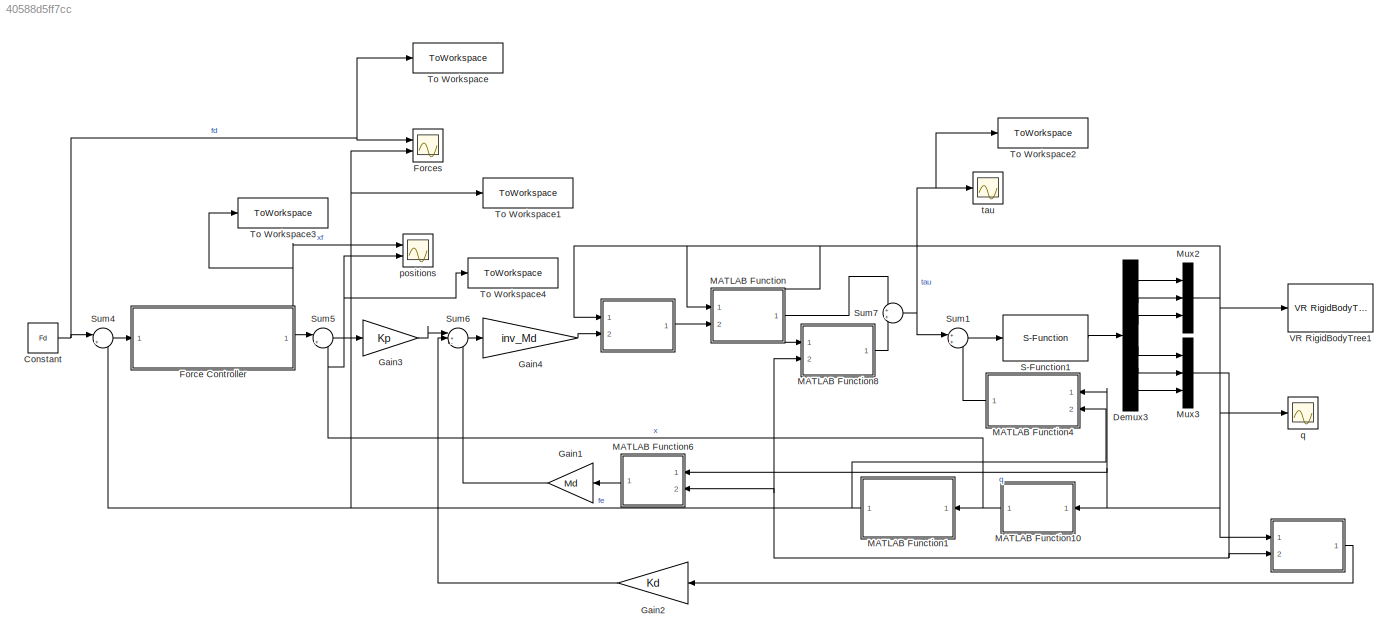
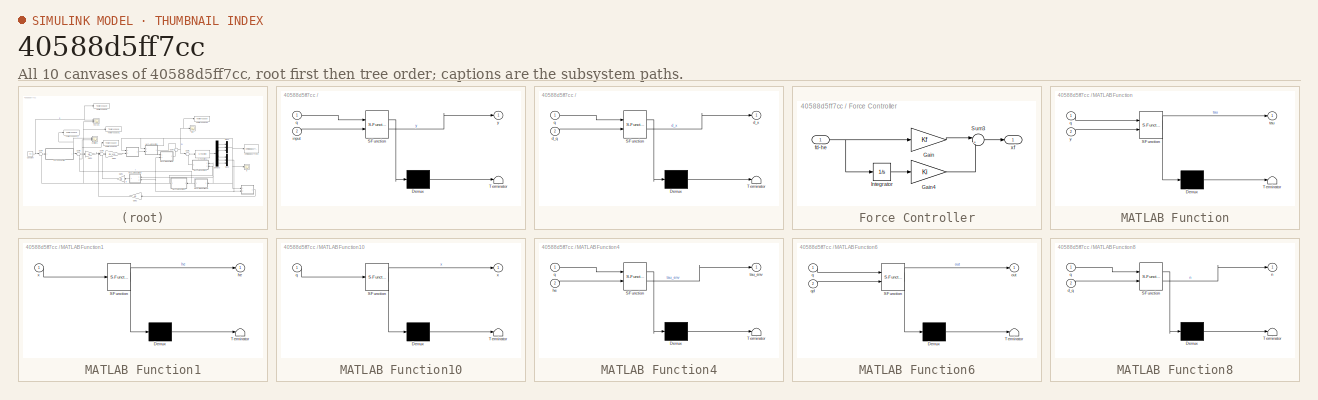
[diagram: thumbnail index - all 10 canvases of the model, root first then tree order]
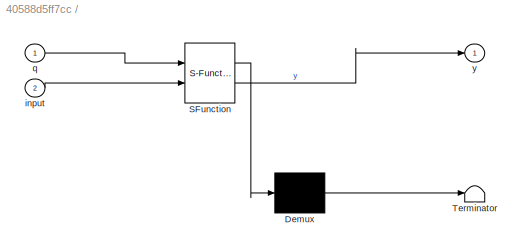
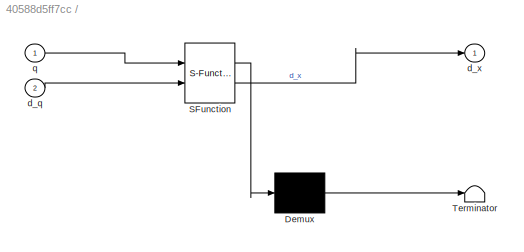
MODEL slx_40588d5ff7cc
KIND model
CONFIG AbsTol = auto
CONFIG EnableMultiTasking = off
CONFIG FixedStep = auto
CONFIG MaxStep = auto
CONFIG MinStep = auto
CONFIG RelTol = 1e-3
CONFIG SampleTimeConstraint = Unconstrained
CONFIG SolverName = VariableStepAuto
CONFIG StartTime = 0.0
CONFIG StopTime = 15
BLOCK [SubSystem]  
  ErrorFcn = Stateflow.Translate.translate
  PermitHierarchicalResolution = ExplicitOnly
  Ports = [2, 1]
  RequestExecContextInheritance = off
  SFBlockType = MATLAB Function
  TreatAsAtomicUnit = on
BLOCK [SubSystem]   
  ErrorFcn = Stateflow.Translate.translate
  NameLocation = top
  PermitHierarchicalResolution = ExplicitOnly
  Ports = [2, 1]
  RequestExecContextInheritance = off
  SFBlockType = MATLAB Function
  TreatAsAtomicUnit = on
BLOCK [Demux]   / Demux 
  Outputs = 1
  Ports = [1, 1]
BLOCK [S-Function]   / SFunction 
  EnableBusSupport = on
  FunctionName = sf_sfun
  Parameters = param
  PortCounts = [2 2]
  Ports = [2, 2]
  SFcnIsStateOwnerBlock = off
  SFunctionDeploymentMode = off
  Tag = Stateflow S-Function 10
BLOCK [Terminator]   / Terminator 
BLOCK [Inport]   /d_q
  Port = 2
BLOCK [Outport]   /d_x
BLOCK [Inport]   /q
BLOCK [Demux]  / Demux 
  Outputs = 1
  Ports = [1, 1]
BLOCK [S-Function]  / SFunction 
  EnableBusSupport = on
  FunctionName = sf_sfun
  Parameters = param
  PortCounts = [2 2]
  Ports = [2, 2]
  SFcnIsStateOwnerBlock = off
  SFunctionDeploymentMode = off
  Tag = Stateflow S-Function 14
BLOCK [Terminator]  / Terminator 
BLOCK [Inport]  /input
  Port = 2
BLOCK [Inport]  /q
BLOCK [Outport]  /y
BLOCK [Constant] Constant
  Value = Fd
BLOCK [Demux] Demux3
  Outputs = 6
  Ports = [1, 6]
BLOCK [SubSystem] Force Controller
  Ports = [1, 1]
  RequestExecContextInheritance = off
BLOCK [Gain] Force Controller/Gain
  Gain = Kf
  Multiplication = Matrix(K*u)
BLOCK [Gain] Force Controller/Gain4
  Gain = Ki
  Multiplication = Matrix(K*u)
BLOCK [Integrator] Force Controller/Integrator
  Ports = [1, 1]
BLOCK [Sum] Force Controller/Sum3
  Inputs = |++
  Ports = [2, 1]
BLOCK [Inport] Force Controller/fd-he
BLOCK [Outport] Force Controller/xf
BLOCK [Scope] Forces
  Floating = off
  NumInputPorts = 2
  Ports = [2]
  ScopeSpecificationString = Simulink.scopes.TimeScopeBlockCfg('CurrentConfiguration', extmgr.ConfigurationSet(extmgr.Configuration('Core','General UI',true),extmgr.Configuration('Core','Source UI',true),extmgr.Configuration('Sources','WiredSimulink',true),extmgr.Configuration('Visuals','Time Domain',true,'SerializedDisplays',{struct('MinYLimReal','-0.00875','MaxYLimReal','0.07875','YLabelReal','','MinYLimMag','0.00000','MaxY...<+1760ch>
BLOCK [Gain] Gain1
  Gain = Md
  Multiplication = Matrix(K*u)
  NameLocation = top
BLOCK [Gain] Gain2
  Gain = Kd
  Multiplication = Matrix(K*u)
BLOCK [Gain] Gain3
  Gain = Kp
  Multiplication = Matrix(K*u)
BLOCK [Gain] Gain4
  Gain = inv_Md
  Multiplication = Matrix(K*u)
BLOCK [SubSystem] MATLAB Function
  ErrorFcn = Stateflow.Translate.translate
  PermitHierarchicalResolution = ExplicitOnly
  Ports = [2, 1]
  RequestExecContextInheritance = off
  SFBlockType = MATLAB Function
  TreatAsAtomicUnit = on
BLOCK [Demux] MATLAB Function/ Demux 
  Outputs = 1
  Ports = [1, 1]
BLOCK [S-Function] MATLAB Function/ SFunction 
  EnableBusSupport = on
  FunctionName = sf_sfun
  Parameters = param
  PortCounts = [2 2]
  Ports = [2, 2]
  SFcnIsStateOwnerBlock = off
  SFunctionDeploymentMode = off
  Tag = Stateflow S-Function 8
BLOCK [Terminator] MATLAB Function/ Terminator 
BLOCK [Inport] MATLAB Function/q
BLOCK [Outport] MATLAB Function/tau
BLOCK [Inport] MATLAB Function/y
  Port = 2
BLOCK [SubSystem] MATLAB Function1
  ErrorFcn = Stateflow.Translate.translate
  PermitHierarchicalResolution = ExplicitOnly
  Ports = [1, 1]
  RequestExecContextInheritance = off
  SFBlockType = MATLAB Function
  TreatAsAtomicUnit = on
BLOCK [Demux] MATLAB Function1/ Demux 
  Outputs = 1
  Ports = [1, 1]
BLOCK [S-Function] MATLAB Function1/ SFunction 
  EnableBusSupport = on
  FunctionName = sf_sfun
  Parameters = param
  PortCounts = [1 2]
  Ports = [1, 2]
  SFcnIsStateOwnerBlock = off
  SFunctionDeploymentMode = off
  Tag = Stateflow S-Function 17
BLOCK [Terminator] MATLAB Function1/ Terminator 
BLOCK [Outport] MATLAB Function1/he
BLOCK [Inport] MATLAB Function1/x
BLOCK [SubSystem] MATLAB Function10
  ErrorFcn = Stateflow.Translate.translate
  PermitHierarchicalResolution = ExplicitOnly
  Ports = [1, 1]
  RequestExecContextInheritance = off
  SFBlockType = MATLAB Function
  TreatAsAtomicUnit = on
BLOCK [Demux] MATLAB Function10/ Demux 
  Outputs = 1
  Ports = [1, 1]
BLOCK [S-Function] MATLAB Function10/ SFunction 
  EnableBusSupport = on
  FunctionName = sf_sfun
  Parameters = param
  PortCounts = [1 2]
  Ports = [1, 2]
  SFcnIsStateOwnerBlock = off
  SFunctionDeploymentMode = off
  Tag = Stateflow S-Function 15
BLOCK [Terminator] MATLAB Function10/ Terminator 
BLOCK [Inport] MATLAB Function10/q
BLOCK [Outport] MATLAB Function10/x
BLOCK [SubSystem] MATLAB Function4
  ErrorFcn = Stateflow.Translate.translate
  PermitHierarchicalResolution = ExplicitOnly
  Ports = [2, 1]
  RequestExecContextInheritance = off
  SFBlockType = MATLAB Function
  TreatAsAtomicUnit = on
BLOCK [Demux] MATLAB Function4/ Demux 
  Outputs = 1
  Ports = [1, 1]
BLOCK [S-Function] MATLAB Function4/ SFunction 
  EnableBusSupport = on
  FunctionName = sf_sfun
  Parameters = param
  PortCounts = [2 2]
  Ports = [2, 2]
  SFcnIsStateOwnerBlock = off
  SFunctionDeploymentMode = off
  Tag = Stateflow S-Function 5
BLOCK [Terminator] MATLAB Function4/ Terminator 
BLOCK [Inport] MATLAB Function4/he
  Port = 2
BLOCK [Inport] MATLAB Function4/q
BLOCK [Outport] MATLAB Function4/tau_env
BLOCK [SubSystem] MATLAB Function6
  ErrorFcn = Stateflow.Translate.translate
  NameLocation = top
  PermitHierarchicalResolution = ExplicitOnly
  Ports = [2, 1]
  RequestExecContextInheritance = off
  SFBlockType = MATLAB Function
  TreatAsAtomicUnit = on
BLOCK [Demux] MATLAB Function6/ Demux 
  Outputs = 1
  Ports = [1, 1]
BLOCK [S-Function] MATLAB Function6/ SFunction 
  EnableBusSupport = on
  FunctionName = sf_sfun
  Parameters = param
  PortCounts = [2 2]
  Ports = [2, 2]
  SFcnIsStateOwnerBlock = off
  SFunctionDeploymentMode = off
  Tag = Stateflow S-Function 6
BLOCK [Terminator] MATLAB Function6/ Terminator 
BLOCK [Outport] MATLAB Function6/out
BLOCK [Inport] MATLAB Function6/q
BLOCK [Inport] MATLAB Function6/qd
  Port = 2
BLOCK [SubSystem] MATLAB Function8
  ErrorFcn = Stateflow.Translate.translate
  NameLocation = top
  PermitHierarchicalResolution = ExplicitOnly
  Ports = [2, 1]
  RequestExecContextInheritance = off
  SFBlockType = MATLAB Function
  TreatAsAtomicUnit = on
BLOCK [Demux] MATLAB Function8/ Demux 
  Outputs = 1
  Ports = [1, 1]
BLOCK [S-Function] MATLAB Function8/ SFunction 
  EnableBusSupport = on
  FunctionName = sf_sfun
  Parameters = param
  PortCounts = [2 2]
  Ports = [2, 2]
  SFcnIsStateOwnerBlock = off
  SFunctionDeploymentMode = off
  Tag = Stateflow S-Function 9
BLOCK [Terminator] MATLAB Function8/ Terminator 
BLOCK [Inport] MATLAB Function8/d_q
  Port = 2
BLOCK [Outport] MATLAB Function8/n
BLOCK [Inport] MATLAB Function8/q
BLOCK [Mux] Mux2
  DisplayOption = bar
  Inputs = 3
  Ports = [3, 1]
BLOCK [Mux] Mux3
  DisplayOption = bar
  Inputs = 3
  Ports = [3, 1]
BLOCK [S-Function] S-Function1
  EnableBusSupport = off
  FunctionName = Manipulator
  Parameters = param
  Ports = [1, 1]
  SFcnIsStateOwnerBlock = off
  SFunctionDeploymentMode = off
BLOCK [Sum] Sum1
  Ports = [2, 1]
BLOCK [Sum] Sum4
  Inputs = |+-
  Ports = [2, 1]
BLOCK [Sum] Sum5
  Inputs = |+-
  Ports = [2, 1]
BLOCK [Sum] Sum6
  Inputs = |+--
  Ports = [3, 1]
BLOCK [Sum] Sum7
  Ports = [2, 1]
BLOCK [ToWorkspace] To Workspace
  FixptAsFi = on
  MaxDataPoints = inf
  Ports = [1]
  SampleTime = -1
  SaveFormat = Timeseries
  VariableName = fd
BLOCK [ToWorkspace] To Workspace1
  FixptAsFi = on
  MaxDataPoints = inf
  Ports = [1]
  SampleTime = -1
  SaveFormat = Timeseries
  VariableName = f
BLOCK [ToWorkspace] To Workspace2
  FixptAsFi = on
  MaxDataPoints = inf
  Ports = [1]
  SampleTime = -1
  SaveFormat = Timeseries
  VariableName = tau
BLOCK [ToWorkspace] To Workspace3
  FixptAsFi = on
  MaxDataPoints = inf
  Ports = [1]
  SampleTime = -1
  SaveFormat = Timeseries
  VariableName = xd
BLOCK [ToWorkspace] To Workspace4
  FixptAsFi = on
  MaxDataPoints = inf
  Ports = [1]
  SampleTime = -1
  SaveFormat = Timeseries
  VariableName = x
BLOCK [Reference] VR RigidBodyTree1  REF=vrlib/VR RigidBodyTree
  Commented = on
  Ports = [1]
  SourceBlock = vrlib/VR RigidBodyTree
  SourceProductBaseCode = SL
  SourceType = VR RigidBodyTree
BLOCK [Scope] positions
  Floating = off
  NumInputPorts = 2
  Ports = [2]
  ScopeSpecificationString = Simulink.scopes.TimeScopeBlockCfg('CurrentConfiguration', extmgr.ConfigurationSet(extmgr.Configuration('Core','General UI',true),extmgr.Configuration('Core','Source UI',true),extmgr.Configuration('Sources','WiredSimulink',true,'DataLoggingVariableName','ScopeData1'),extmgr.Configuration('Visuals','Time Domain',true,'SerializedDisplays',{struct('MinYLimReal','-3.63172','MaxYLimReal','1.26952','YLab...<+1799ch>
BLOCK [Scope] q
  Floating = off
  NumInputPorts = 1
  Ports = [1]
  ScopeSpecificationString = Simulink.scopes.TimeScopeBlockCfg('CurrentConfiguration', extmgr.ConfigurationSet(extmgr.Configuration('Core','General UI',true),extmgr.Configuration('Core','Source UI',true),extmgr.Configuration('Sources','WiredSimulink',true,'DataLoggingVariableName','ScopeData1'),extmgr.Configuration('Visuals','Time Domain',true,'SerializedDisplays',{struct('MinYLimReal','-0.52812','MaxYLimReal','0.1531','YLabe...<+1436ch>
BLOCK [Scope] tau
  Floating = off
  NumInputPorts = 1
  Ports = [1]
  ScopeSpecificationString = Simulink.scopes.TimeScopeBlockCfg('CurrentConfiguration', extmgr.ConfigurationSet(extmgr.Configuration('Core','General UI',true),extmgr.Configuration('Core','Source UI',true),extmgr.Configuration('Sources','WiredSimulink',true,'DataLoggingVariableName','ScopeData2'),extmgr.Configuration('Visuals','Time Domain',true,'SerializedDisplays',{struct('MinYLimReal','-305.78512','MaxYLimReal','87.97612','Y...<+1513ch>
LINE   :1 -> Gain2:1
LINE  :1 -> MATLAB Function:2
NET Constant:1 -> Forces:1, Sum4:1, To Workspace:1
LINE Demux3:1 -> Mux2:1
LINE Demux3:2 -> Mux2:2
LINE Demux3:3 -> Mux2:3
LINE Demux3:4 -> Mux3:1
LINE Demux3:5 -> Mux3:2
LINE Demux3:6 -> Mux3:3
LINE Force Controller/Gain4:1 -> Force Controller/Sum3:2
LINE Force Controller/Gain:1 -> Force Controller/Sum3:1
LINE Force Controller/Integrator:1 -> Force Controller/Gain4:1
LINE Force Controller/Sum3:1 -> Force Controller/xf:1
NET Force Controller/fd-he:1 -> Force Controller/Gain:1, Force Controller/Integrator:1
NET Force Controller:1 -> Sum5:1, To Workspace3:1, positions:1
LINE Gain1:1 -> Sum6:3
LINE Gain2:1 -> Sum6:2
LINE Gain3:1 -> Sum6:1
LINE Gain4:1 ->  :2
NET MATLAB Function10:1 -> MATLAB Function1:1, Sum5:2, To Workspace4:1, positions:2
NET MATLAB Function1:1 -> Forces:2, MATLAB Function4:2, Sum4:2, To Workspace1:1
LINE MATLAB Function4:1 -> Sum1:2
LINE MATLAB Function6:1 -> Gain1:1
LINE MATLAB Function8:1 -> Sum7:2
LINE MATLAB Function:1 -> Sum7:1
NET Mux2:1 ->   :1,  :1, MATLAB Function10:1, MATLAB Function4:1, MATLAB Function6:1, MATLAB Function8:1, MATLAB Function:1, VR RigidBodyTree1:1, q:1
NET Mux3:1 ->   :2, MATLAB Function6:2, MATLAB Function8:2
LINE S-Function1:1 -> Demux3:1
LINE Sum1:1 -> S-Function1:1
LINE Sum4:1 -> Force Controller:1
LINE Sum5:1 -> Gain3:1
LINE Sum6:1 -> Gain4:1
NET Sum7:1 -> Sum1:1, To Workspace2:1, tau:1
note: NET lines group one-source signal fan-out (src -> all destinations, sorted); 1:1 wires keep LINE
CHART MATLAB Function4 states=1 transitions=1
  STATE_LABEL 'eML_blk_kernel()'
  STATE_LABEL "SCRIPT:\nfunction tau_env = JT(q, he, param)\n    tau_env = -Jacobian(q, param)' * he;\nend"
CHART MATLAB Function6 states=1 transitions=1
  STATE_LABEL 'eML_blk_kernel()'
  STATE_LABEL 'SCRIPT:\nfunction out = dot_Ja(q, qd, param)\n    d_Ja = AnalyticalJacobian_dot(q,qd,param);\n    out = d_Ja * qd;\nend'
CHART MATLAB Function states=1 transitions=1
  STATE_LABEL 'eML_blk_kernel()'
  STATE_LABEL 'SCRIPT:\nfunction tau = B(q,y,param)\n    B_matrix = B_Lagrangian(q, param);\n    tau =  B_matrix * y;\nend\n'
CHART MATLAB Function8 states=1 transitions=1
  STATE_LABEL 'eML_blk_kernel()'
  STATE_LABEL 'SCRIPT:\nfunction n = n(q,d_q,param)\n    % Compute C and G used in the model of n(q,d_q)\n    C = double(C_Lagrangian(q, d_q, param));\n    G = double(G_Lagrangian(q, param));\n    Fsv = param.Fsv;\n\n    n = C * d_q + G + Fsv * d_q;\nend\n'
CHART    states=1 transitions=1
  STATE_LABEL 'eML_blk_kernel()'
  STATE_LABEL 'SCRIPT:\nfunction d_x = Ja(q, d_q, param)\n    Ja = AnalyticalJacobian(q,param);\n    d_x = Ja * d_q;\nend\n'
CHART   states=1 transitions=1
  STATE_LABEL 'eML_blk_kernel()'
  STATE_LABEL 'SCRIPT:\nfunction y = invJa(q, input, param)\n    Ja = AnalyticalJacobian(q,param);\n    y = pinv(Ja) * input;\nend\n'
CHART MATLAB Function10 states=1 transitions=1
  STATE_LABEL 'eML_blk_kernel()'
  STATE_LABEL 'SCRIPT:\nfunction x = Kin(q,param)\n    x = Kinematics(q,param);\nend'
CHART MATLAB Function1 states=1 transitions=1
  STATE_LABEL 'eML_blk_kernel()'
  STATE_LABEL 'SCRIPT:\nfunction he = environment(x, param)\n    if x(param.axis) >= param.wall \n\n        % set up the rest position frame\n        xr = zeros(6,1);\n        xr(param.axis) = param.wall;\n\n        xe = zeros(6,1);\n        xe(param.axis) = x(param.axis);\n\n        he = param.K * (xe - xr);\n%         dx_rd = zeros(6,1);\n%         dx_rd(2) = xd(2) - xr(2);\n%         % At the limit\n%         he =  K/(eye(6...<+66ch>'
CHART  states=0 transitions=0
CHART  states=0 transitions=0
CHART  states=0 transitions=0
CHART  states=0 transitions=0
CHART  states=0 transitions=0
CHART  states=0 transitions=0
CHART  states=0 transitions=0
CHART  states=0 transitions=0
